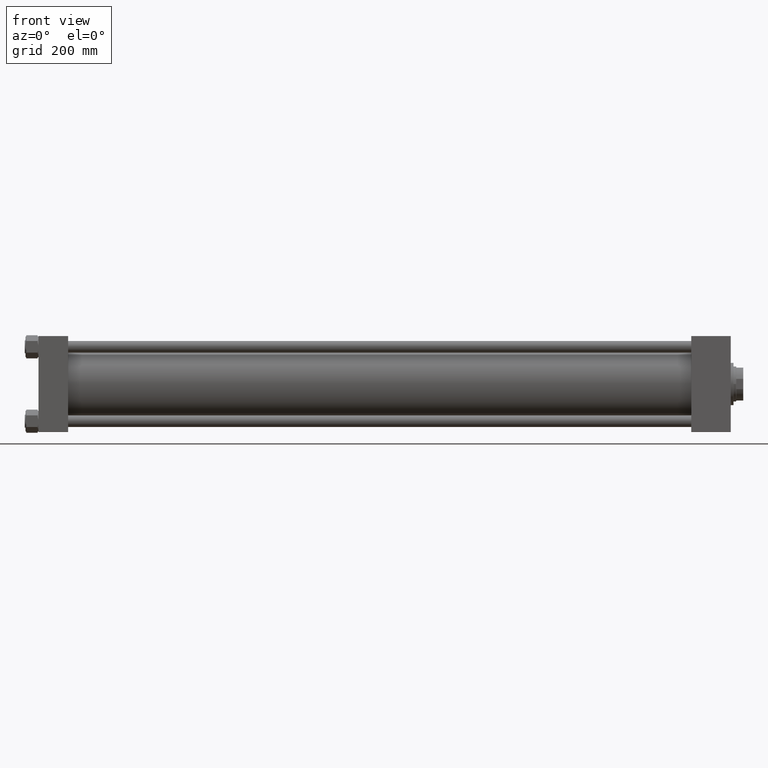
[diagram: clean part render]
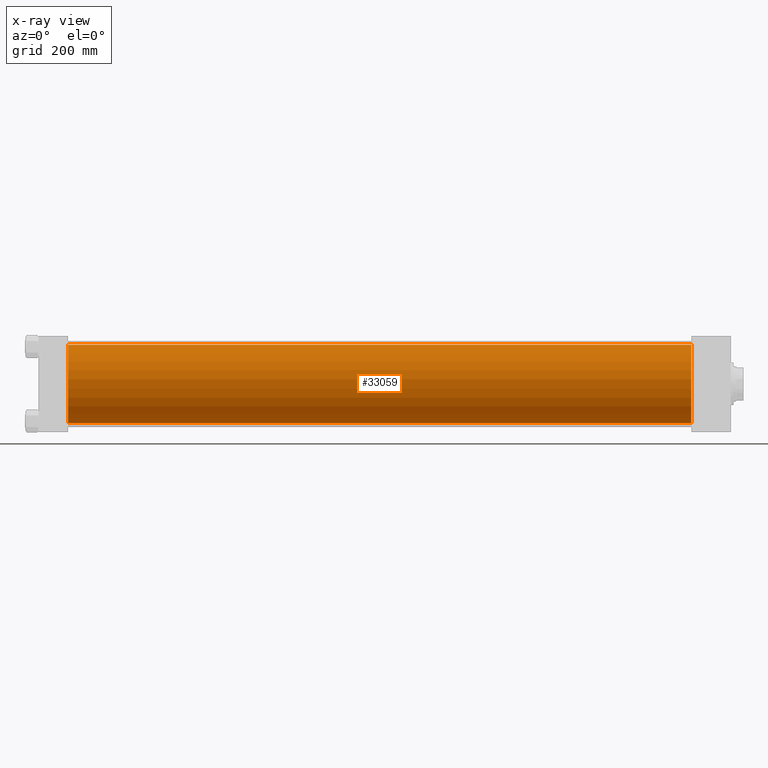
[diagram: x-ray — body ghosted, one internal face saturated and labeled with its STEP entity id]
A machine part, front view, then the same camera in x-ray: the body is ghosted and one INTERNAL B-rep face — a face not visible from any outside direction — is saturated and labeled: STEP entity #33059.
In plain terms, the highlighted cylindrical surface (partial cylindrical patch) has radius 100 mm, axis along (-1, -0, -0).
Its self-contained STEP definition (entity closure, byte-faithful):
#691 = DIRECTION ( 'NONE',  ( -1.000000000000000000, -0.000000000000000000, -0.000000000000000000 ) ) ;
#1253 = EDGE_CURVE ( 'NONE', #34403, #23219, #33138, .T. ) ;
#1954 = DIRECTION ( 'NONE',  ( 0.000000000000000000, 0.000000000000000000, -1.000000000000000000 ) ) ;
#2721 = DIRECTION ( 'NONE',  ( 1.000000000000000000, 0.000000000000000000, 0.000000000000000000 ) ) ;
#3560 = CARTESIAN_POINT ( 'NONE',  ( 76.00000000000000000, -2.602085213965210642E-15, 100.0000000000000000 ) ) ;
#6508 = CARTESIAN_POINT ( 'NONE',  ( 1668.000000000000227, -2.602085213965210642E-15, 0.000000000000000000 ) ) ;
#7159 = DIRECTION ( 'NONE',  ( 0.000000000000000000, 0.000000000000000000, -1.000000000000000000 ) ) ;
#7546 = CARTESIAN_POINT ( 'NONE',  ( 1668.000000000000227, 9.644382777508321529E-15, -100.0000000000000000 ) ) ;
#7702 = AXIS2_PLACEMENT_3D ( 'NONE', #15103, #19187, #7159 ) ;
#12898 = AXIS2_PLACEMENT_3D ( 'NONE', #30163, #2721, #1954 ) ;
#14595 = ORIENTED_EDGE ( 'NONE', *, *, #44780, .F. ) ;
#15103 = CARTESIAN_POINT ( 'NONE',  ( 1668.000000000000227, -2.602085213965210642E-15, 0.000000000000000000 ) ) ;
#16335 = DIRECTION ( 'NONE',  ( 0.000000000000000000, 0.000000000000000000, 1.000000000000000000 ) ) ;
#17351 = EDGE_LOOP ( 'NONE', ( #44053, #50330, #14595, #19856 ) ) ;
#18127 = CARTESIAN_POINT ( 'NONE',  ( 76.00000000000000000, 9.644382777508321529E-15, -100.0000000000000000 ) ) ;
#18742 = LINE ( 'NONE', #38508, #49230 ) ;
#19187 = DIRECTION ( 'NONE',  ( 1.000000000000000000, 0.000000000000000000, 0.000000000000000000 ) ) ;
#19856 = ORIENTED_EDGE ( 'NONE', *, *, #47007, .F. ) ;
#21642 = EDGE_CURVE ( 'NONE', #23219, #49384, #18742, .T. ) ;
#21653 = AXIS2_PLACEMENT_3D ( 'NONE', #6508, #691, #16335 ) ;
#23219 = VERTEX_POINT ( 'NONE', #7546 ) ;
#26004 = CYLINDRICAL_SURFACE ( 'NONE', #21653, 100.0000000000000000 ) ;
#30119 = CIRCLE ( 'NONE', #12898, 100.0000000000000000 ) ;
#30163 = CARTESIAN_POINT ( 'NONE',  ( 76.00000000000000000, -2.602085213965210642E-15, 0.000000000000000000 ) ) ;
#30784 = DIRECTION ( 'NONE',  ( -1.000000000000000000, -0.000000000000000000, -0.000000000000000000 ) ) ;
#33059 = ADVANCED_FACE ( 'NONE', ( #45497 ), #26004, .F. ) ;
#33138 = CIRCLE ( 'NONE', #7702, 100.0000000000000000 ) ;
#34403 = VERTEX_POINT ( 'NONE', #44122 ) ;
#37065 = LINE ( 'NONE', #40145, #44986 ) ;
#37623 = VERTEX_POINT ( 'NONE', #3560 ) ;
#38508 = CARTESIAN_POINT ( 'NONE',  ( 1668.000000000000227, 9.644382777508321529E-15, -100.0000000000000000 ) ) ;
#40145 = CARTESIAN_POINT ( 'NONE',  ( 1668.000000000000227, -2.602085213965210642E-15, 100.0000000000000000 ) ) ;
#44053 = ORIENTED_EDGE ( 'NONE', *, *, #1253, .T. ) ;
#44122 = CARTESIAN_POINT ( 'NONE',  ( 1668.000000000000227, -2.602085213965210642E-15, 100.0000000000000000 ) ) ;
#44780 = EDGE_CURVE ( 'NONE', #37623, #49384, #30119, .T. ) ;
#44986 = VECTOR ( 'NONE', #45011, 1000.000000000000000 ) ;
#45011 = DIRECTION ( 'NONE',  ( -1.000000000000000000, -0.000000000000000000, -0.000000000000000000 ) ) ;
#45497 = FACE_OUTER_BOUND ( 'NONE', #17351, .T. ) ;
#47007 = EDGE_CURVE ( 'NONE', #34403, #37623, #37065, .T. ) ;
#49230 = VECTOR ( 'NONE', #30784, 1000.000000000000000 ) ;
#49384 = VERTEX_POINT ( 'NONE', #18127 ) ;
#50330 = ORIENTED_EDGE ( 'NONE', *, *, #21642, .T. ) ;